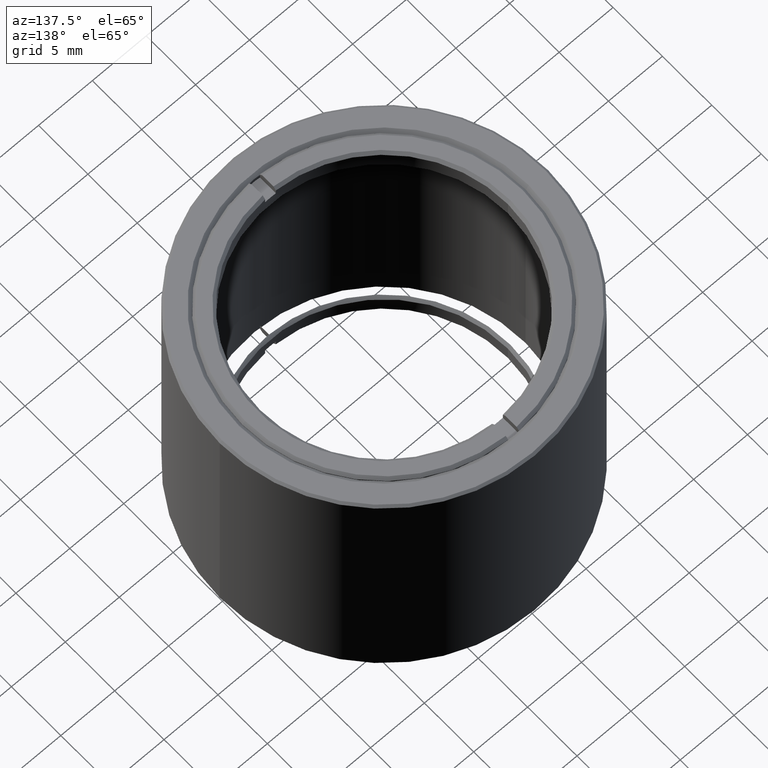
[diagram: clean part render]
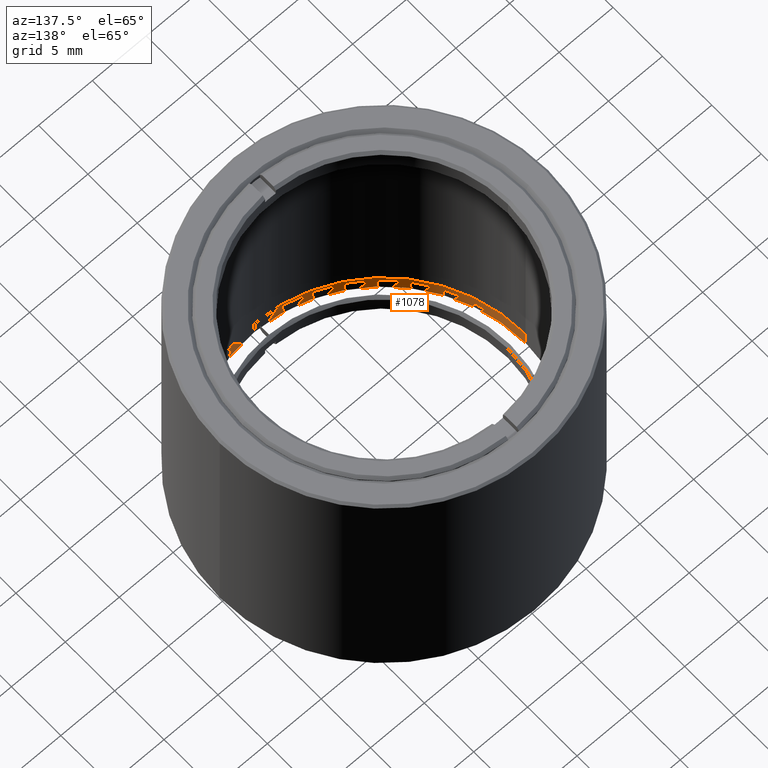
[diagram: same view with one face highlighted and labeled with its STEP entity id]
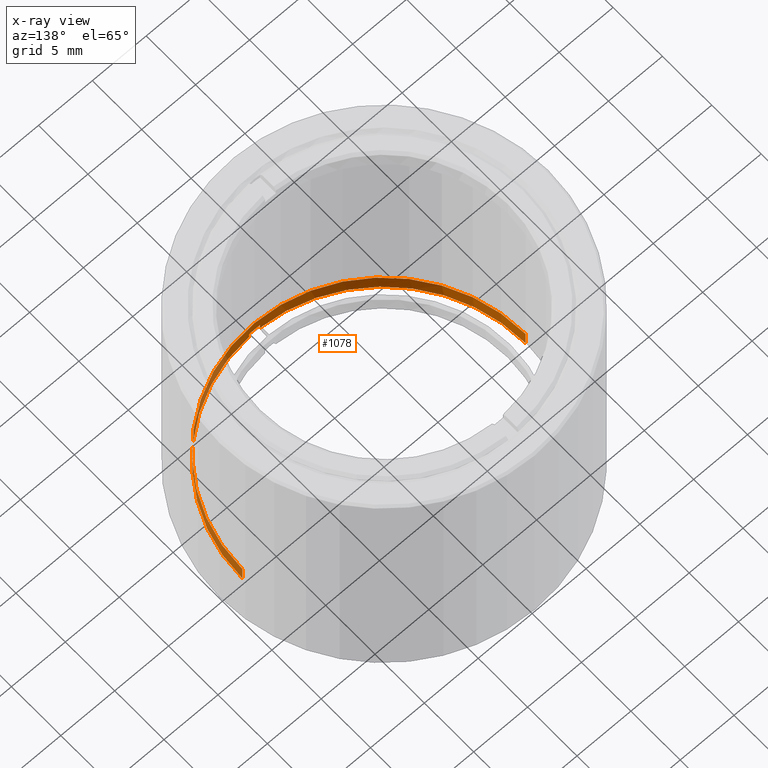
[diagram: x-ray of the same camera — body ghosted, the highlighted face saturated]
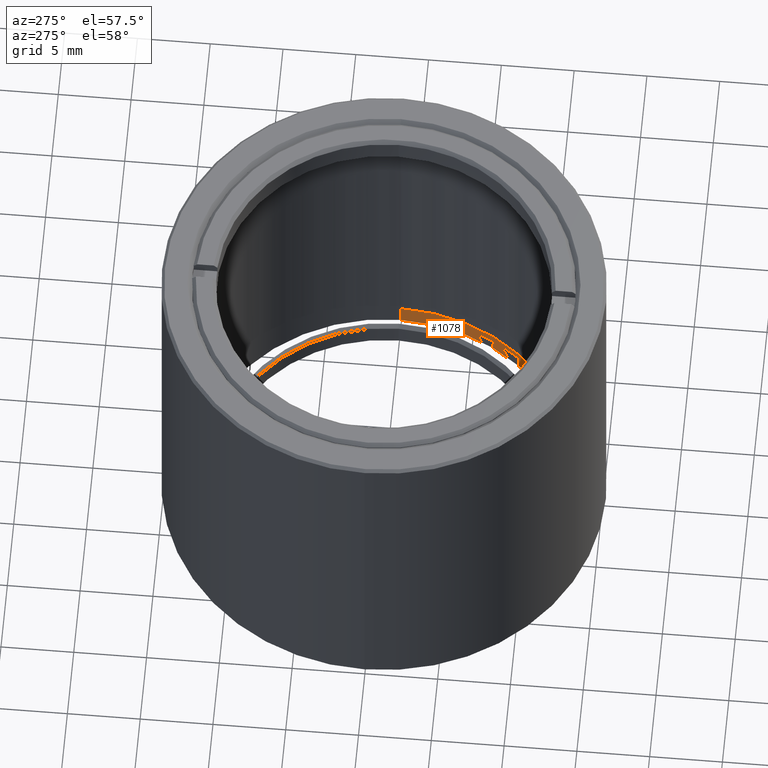
[diagram: same view with one face highlighted and labeled with its STEP entity id]
A machine part, auxiliary view. The second image highlights one B-rep face of the part: STEP entity #1078.
The next image is the same camera in x-ray: the body ghosted, the highlighted face saturated — about 22% of this face is hidden behind the body in this view.
A second angle (auxiliary view) of the same face is appended — the face is thin or edge-on in the first view.
In plain terms, the highlighted cylindrical surface (partial cylindrical patch) has radius 13.1445 mm, axis along (-0, 0, 1).
Its self-contained STEP definition (entity closure, byte-faithful):
#20 = DIRECTION ( 'NONE',  ( 1.224646799147355179E-16, -7.395570986447003192E-32, -1.000000000000000000 ) ) ;
#28 = CARTESIAN_POINT ( 'NONE',  ( 3.802528311352532977E-15, 4.577550291819607924E-31, -31.04999999999999716 ) ) ;
#29 = EDGE_CURVE ( 'NONE', #351, #48, #104, .T. ) ;
#48 = VERTEX_POINT ( 'NONE', #1293 ) ;
#91 = DIRECTION ( 'NONE',  ( -1.224646799147355179E-16, 7.395570986447003192E-32, 1.000000000000000000 ) ) ;
#104 = CIRCLE ( 'NONE', #855, 13.14449999999998653 ) ;
#166 = VERTEX_POINT ( 'NONE', #2259 ) ;
#188 = VECTOR ( 'NONE', #1904, 1000.000000000000000 ) ;
#193 = AXIS2_PLACEMENT_3D ( 'NONE', #334, #536, #2095 ) ;
#271 = CIRCLE ( 'NONE', #193, 13.14449999999998653 ) ;
#284 = VECTOR ( 'NONE', #1458, 1000.000000000000000 ) ;
#290 = CARTESIAN_POINT ( 'NONE',  ( -0.4999999999999951150, -13.13498687665882514, -31.49999999999999289 ) ) ;
#334 = CARTESIAN_POINT ( 'NONE',  ( 3.857637417314164267E-15, 1.131830509717493604E-30, -31.49999999999999289 ) ) ;
#351 = VERTEX_POINT ( 'NONE', #1755 ) ;
#386 = CYLINDRICAL_SURFACE ( 'NONE', #2040, 13.14449999999998653 ) ;
#416 = DIRECTION ( 'NONE',  ( 1.000000000000000000, 1.224646799147353207E-16, 0.000000000000000000 ) ) ;
#536 = DIRECTION ( 'NONE',  ( -1.224646799147355179E-16, 7.395570986447003192E-32, 1.000000000000000000 ) ) ;
#549 = VECTOR ( 'NONE', #876, 1000.000000000000000 ) ;
#636 = ORIENTED_EDGE ( 'NONE', *, *, #1044, .T. ) ;
#638 = VERTEX_POINT ( 'NONE', #869 ) ;
#649 = DIRECTION ( 'NONE',  ( -1.224646799147355179E-16, 7.395570986447003192E-32, 1.000000000000000000 ) ) ;
#656 = EDGE_CURVE ( 'NONE', #48, #1223, #2266, .T. ) ;
#697 = CARTESIAN_POINT ( 'NONE',  ( 13.14449999999999008, 5.668347708513938116E-30, -31.74999999999999289 ) ) ;
#716 = DIRECTION ( 'NONE',  ( 1.000000000000000000, 1.010643099614858211E-15, 0.000000000000000000 ) ) ;
#722 = LINE ( 'NONE', #2464, #188 ) ;
#761 = ORIENTED_EDGE ( 'NONE', *, *, #656, .T. ) ;
#787 = CARTESIAN_POINT ( 'NONE',  ( 0.5000000000000029976, -13.13498687665882514, -31.04999999999999716 ) ) ;
#855 = AXIS2_PLACEMENT_3D ( 'NONE', #1849, #91, #716 ) ;
#869 = CARTESIAN_POINT ( 'NONE',  ( -13.14449999999997765, -1.609736985139235087E-15, -31.49999999999999289 ) ) ;
#876 = DIRECTION ( 'NONE',  ( -1.224646799147355179E-16, 7.395570986447003192E-32, 1.000000000000000000 ) ) ;
#879 = AXIS2_PLACEMENT_3D ( 'NONE', #2317, #2504, #1160 ) ;
#953 = CARTESIAN_POINT ( 'NONE',  ( -0.4999999999999952260, -13.13498687665882514, -31.04999999999999361 ) ) ;
#973 = CARTESIAN_POINT ( 'NONE',  ( 3.888253587292847265E-15, 1.131830509717493429E-30, -31.74999999999999289 ) ) ;
#1044 = EDGE_CURVE ( 'NONE', #1223, #166, #1773, .T. ) ;
#1054 = VECTOR ( 'NONE', #649, 1000.000000000000000 ) ;
#1056 = CARTESIAN_POINT ( 'NONE',  ( -0.4999999999999951150, -13.13498687665882514, -31.74999999999999289 ) ) ;
#1078 = ADVANCED_FACE ( 'NONE', ( #1619 ), #386, .T. ) ;
#1121 = LINE ( 'NONE', #1056, #1054 ) ;
#1152 = ORIENTED_EDGE ( 'NONE', *, *, #29, .T. ) ;
#1160 = DIRECTION ( 'NONE',  ( 1.000000000000000000, 1.224646799147353207E-16, 0.000000000000000000 ) ) ;
#1220 = CIRCLE ( 'NONE', #2328, 13.14449999999998653 ) ;
#1223 = VERTEX_POINT ( 'NONE', #2313 ) ;
#1243 = CARTESIAN_POINT ( 'NONE',  ( -13.14449999999998298, -1.609736985139235678E-15, -31.74999999999999289 ) ) ;
#1256 = EDGE_CURVE ( 'NONE', #1522, #1556, #1220, .T. ) ;
#1293 = CARTESIAN_POINT ( 'NONE',  ( 13.14450000000000252, 5.742303418378411476E-30, -31.49999999999999289 ) ) ;
#1306 = EDGE_CURVE ( 'NONE', #1704, #1556, #1121, .T. ) ;
#1344 = DIRECTION ( 'NONE',  ( -1.000000000000000000, -1.224646799147353207E-16, 0.000000000000000000 ) ) ;
#1367 = DIRECTION ( 'NONE',  ( -1.224646799147355179E-16, 7.395570986447003192E-32, 1.000000000000000000 ) ) ;
#1399 = EDGE_CURVE ( 'NONE', #638, #166, #2026, .T. ) ;
#1400 = ORIENTED_EDGE ( 'NONE', *, *, #2379, .T. ) ;
#1458 = DIRECTION ( 'NONE',  ( -1.224646799147355179E-16, 7.395570986447003192E-32, 1.000000000000000000 ) ) ;
#1522 = VERTEX_POINT ( 'NONE', #787 ) ;
#1556 = VERTEX_POINT ( 'NONE', #953 ) ;
#1619 = FACE_OUTER_BOUND ( 'NONE', #2360, .T. ) ;
#1704 = VERTEX_POINT ( 'NONE', #290 ) ;
#1755 = CARTESIAN_POINT ( 'NONE',  ( 0.5000000000000031086, -13.13498687665882692, -31.49999999999999289 ) ) ;
#1773 = CIRCLE ( 'NONE', #879, 13.14449999999998653 ) ;
#1849 = CARTESIAN_POINT ( 'NONE',  ( 3.857637417314164267E-15, 1.131830509717493604E-30, -31.49999999999999289 ) ) ;
#1889 = ORIENTED_EDGE ( 'NONE', *, *, #2345, .T. ) ;
#1904 = DIRECTION ( 'NONE',  ( 1.224646799147355179E-16, -7.395570986447003192E-32, -1.000000000000000000 ) ) ;
#2026 = LINE ( 'NONE', #1243, #284 ) ;
#2040 = AXIS2_PLACEMENT_3D ( 'NONE', #973, #1367, #1344 ) ;
#2095 = DIRECTION ( 'NONE',  ( 1.000000000000000000, 1.224646799147353207E-16, 0.000000000000000000 ) ) ;
#2117 = ORIENTED_EDGE ( 'NONE', *, *, #1256, .F. ) ;
#2124 = ORIENTED_EDGE ( 'NONE', *, *, #1306, .T. ) ;
#2259 = CARTESIAN_POINT ( 'NONE',  ( -13.14449999999999541, -1.609736985139237059E-15, -30.00000000000000355 ) ) ;
#2266 = LINE ( 'NONE', #697, #549 ) ;
#2313 = CARTESIAN_POINT ( 'NONE',  ( 13.14450000000000252, 5.742303418378412177E-30, -30.00000000000000355 ) ) ;
#2317 = CARTESIAN_POINT ( 'NONE',  ( 3.673940397442061544E-15, 1.035534012498131636E-30, -30.00000000000000355 ) ) ;
#2328 = AXIS2_PLACEMENT_3D ( 'NONE', #28, #20, #416 ) ;
#2345 = EDGE_CURVE ( 'NONE', #638, #1704, #271, .T. ) ;
#2360 = EDGE_LOOP ( 'NONE', ( #1152, #761, #636, #2505, #1889, #2124, #2117, #1400 ) ) ;
#2379 = EDGE_CURVE ( 'NONE', #1522, #351, #722, .T. ) ;
#2464 = CARTESIAN_POINT ( 'NONE',  ( 0.5000000000000031086, -13.13498687665882514, -31.74999999999999289 ) ) ;
#2504 = DIRECTION ( 'NONE',  ( 1.224646799147355179E-16, -7.395570986447003192E-32, -1.000000000000000000 ) ) ;
#2505 = ORIENTED_EDGE ( 'NONE', *, *, #1399, .F. ) ;